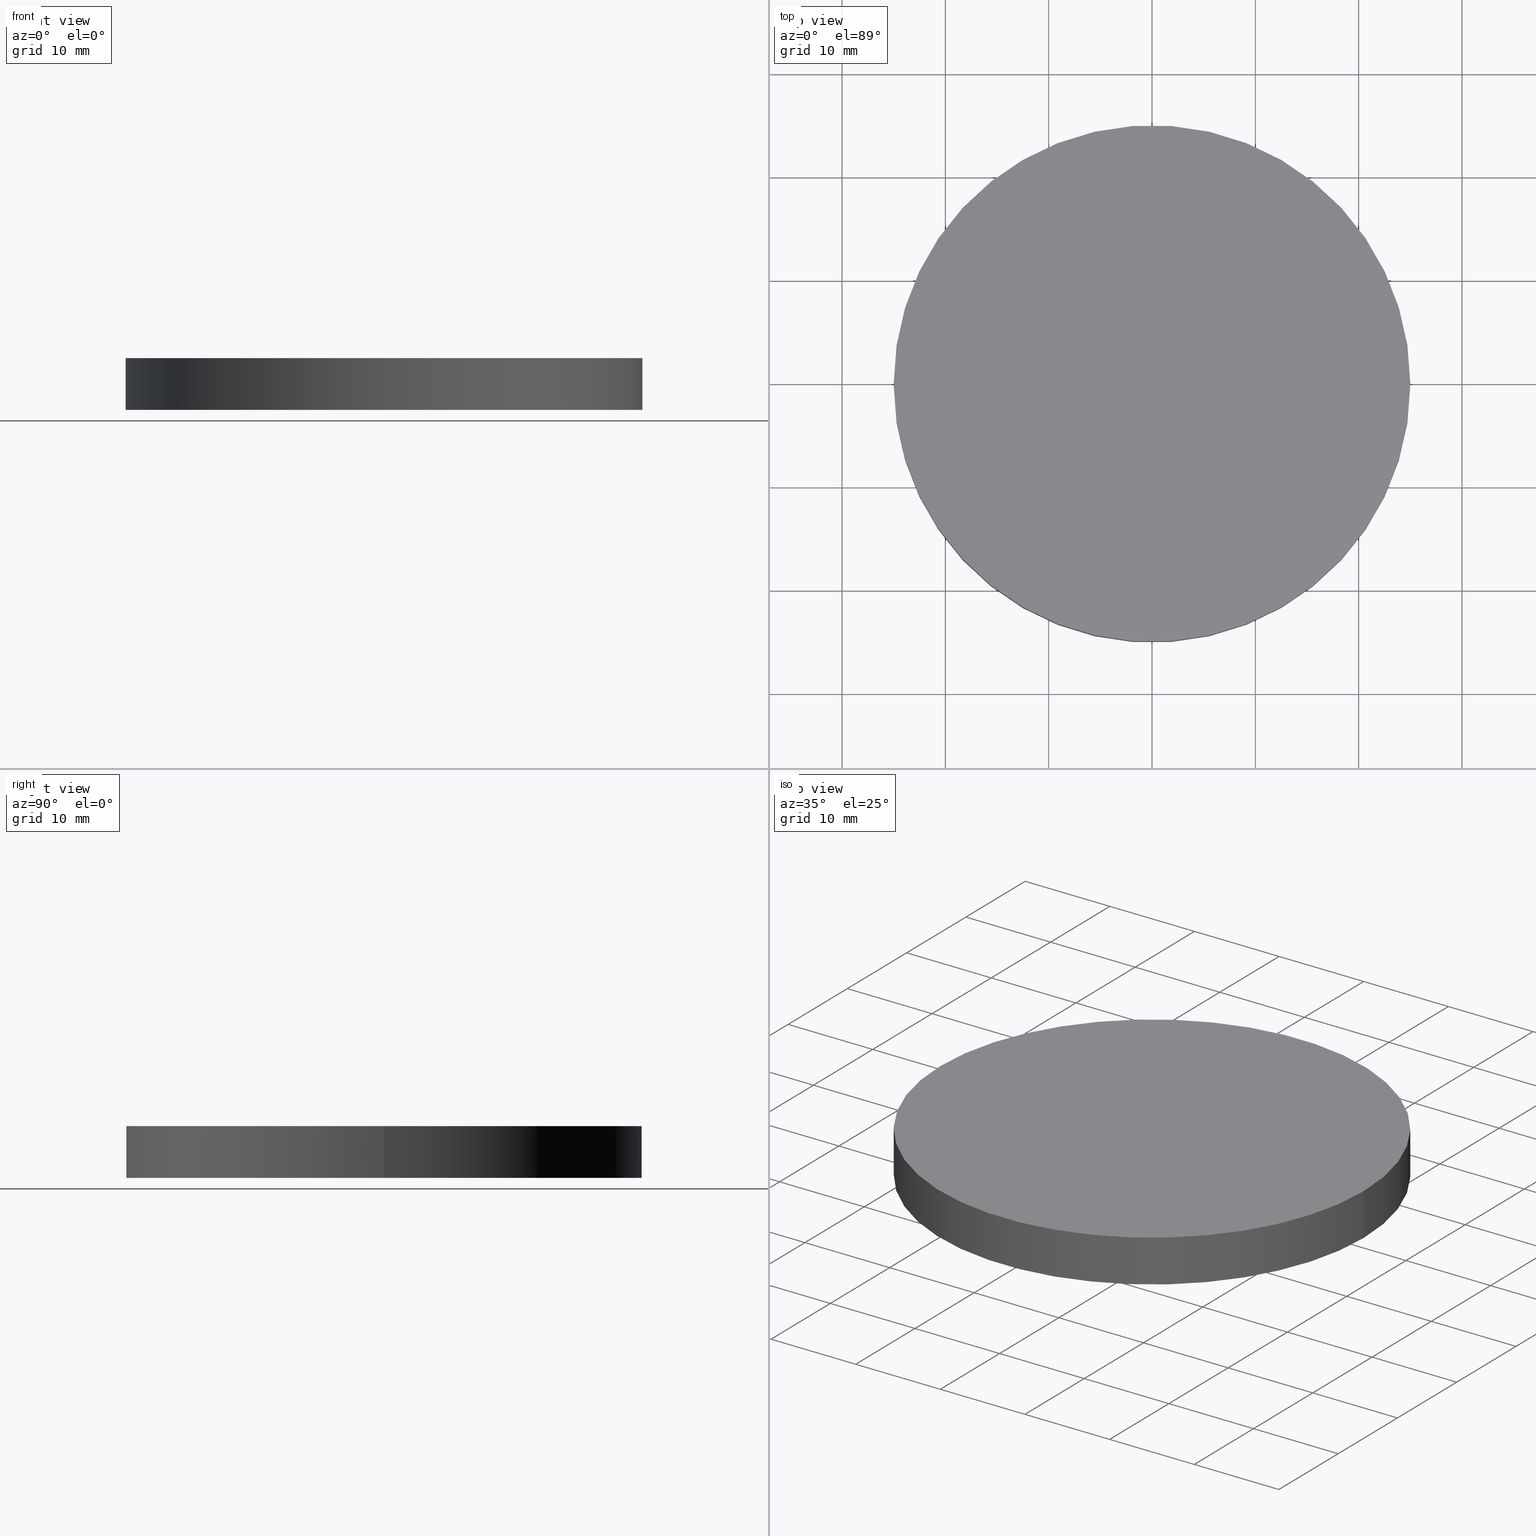
[diagram: canonical four-view strip — front | top / right | iso, engineering-drawing reading convention]
A machine part, canonical four-view strip (front | top / right | iso — engineering-drawing reading convention). The complete STEP part file that produces these views, byte-faithful:
ISO-10303-21;
HEADER;
FILE_DESCRIPTION (( 'STEP AP214' ),
    '1' );
FILE_NAME ('190160.STEP',
    '2019-07-18T06:48:18',
    ( 'user' ),
    ( '΢���й�' ),
    'SwSTEP 2.0',
    'SolidWorks 2016',
    '' );
FILE_SCHEMA (( 'AUTOMOTIVE_DESIGN' ));
ENDSEC;

DATA;
#1 = AXIS2_PLACEMENT_3D ( 'NONE', #88, #60, #124 ) ;
#2 =( LENGTH_UNIT ( ) NAMED_UNIT ( * ) SI_UNIT ( .MILLI., .METRE. ) );
#3 = PRODUCT_CONTEXT ( 'NONE', #138, 'mechanical' ) ;
#4 = ORIENTED_EDGE ( 'NONE', *, *, #23, .F. ) ;
#5 = FILL_AREA_STYLE_COLOUR ( '', #95 ) ;
#6 = PRODUCT_DEFINITION_SHAPE ( 'NONE', 'NONE',  #96 ) ;
#7 = STYLED_ITEM ( 'NONE', ( #105 ), #28 ) ;
#8 = AXIS2_PLACEMENT_3D ( 'NONE', #74, #131, #59 ) ;
#9 = VERTEX_POINT ( 'NONE', #79 ) ;
#10 = VERTEX_POINT ( 'NONE', #65 ) ;
#11 = APPLICATION_PROTOCOL_DEFINITION ( 'draft international standard', 'automotive_design', 1998, #138 ) ;
#12 = CARTESIAN_POINT ( 'NONE',  ( 0.0000000000000000000, 0.0000000000000000000, 5.000000000000000000 ) ) ;
#13 = PRODUCT_DEFINITION_CONTEXT ( 'detailed design', #27, 'design' ) ;
#14 =( GEOMETRIC_REPRESENTATION_CONTEXT ( 3 ) GLOBAL_UNCERTAINTY_ASSIGNED_CONTEXT ( ( #135 ) ) GLOBAL_UNIT_ASSIGNED_CONTEXT ( ( #33, #104, #21 ) ) REPRESENTATION_CONTEXT ( 'NONE', 'WORKASPACE' ) );
#15 = ORIENTED_EDGE ( 'NONE', *, *, #92, .F. ) ;
#16 = VERTEX_POINT ( 'NONE', #89 ) ;
#17 = UNCERTAINTY_MEASURE_WITH_UNIT (LENGTH_MEASURE( 1.000000000000000100E-005 ), #2, 'distance_accuracy_value', 'NONE');
#18 = FACE_OUTER_BOUND ( 'NONE', #128, .T. ) ;
#19 = MANIFOLD_SOLID_BREP ( '͹̨-����1', #99 ) ;
#20 = AXIS2_PLACEMENT_3D ( 'NONE', #123, #87, #45 ) ;
#21 =( NAMED_UNIT ( * ) SI_UNIT ( $, .STERADIAN. ) SOLID_ANGLE_UNIT ( ) );
#22 = CARTESIAN_POINT ( 'NONE',  ( 25.00000000000000000, 3.061616997868383000E-015, 5.000000000000000000 ) ) ;
#23 = EDGE_CURVE ( 'NONE', #16, #9, #36, .T. ) ;
#24 = CYLINDRICAL_SURFACE ( 'NONE', #20, 25.00000000000000000 ) ;
#25 = DIRECTION ( 'NONE',  ( -0.0000000000000000000, -0.0000000000000000000, -1.000000000000000000 ) ) ;
#26 =( NAMED_UNIT ( * ) SI_UNIT ( $, .STERADIAN. ) SOLID_ANGLE_UNIT ( ) );
#27 = APPLICATION_CONTEXT ( 'automotive_design' ) ;
#28 = ADVANCED_BREP_SHAPE_REPRESENTATION ( '190160', ( #19, #90 ), #14 ) ;
#29 = FACE_OUTER_BOUND ( 'NONE', #69, .T. ) ;
#30 = AXIS2_PLACEMENT_3D ( 'NONE', #12, #57, #97 ) ;
#31 = STYLED_ITEM ( 'NONE', ( #115 ), #19 ) ;
#32 = MECHANICAL_DESIGN_GEOMETRIC_PRESENTATION_REPRESENTATION (  '', ( #31 ), #120 ) ;
#33 =( LENGTH_UNIT ( ) NAMED_UNIT ( * ) SI_UNIT ( .MILLI., .METRE. ) );
#34 = SURFACE_STYLE_FILL_AREA ( #130 ) ;
#35 = DIRECTION ( 'NONE',  ( 0.0000000000000000000, 0.0000000000000000000, 1.000000000000000000 ) ) ;
#36 = CIRCLE ( 'NONE', #80, 25.00000000000000000 ) ;
#37 = CARTESIAN_POINT ( 'NONE',  ( -25.00000000000000000, 0.0000000000000000000, 0.0000000000000000000 ) ) ;
#38 = DIRECTION ( 'NONE',  ( 1.000000000000000000, 0.0000000000000000000, -0.0000000000000000000 ) ) ;
#39 =( LENGTH_UNIT ( ) NAMED_UNIT ( * ) SI_UNIT ( .MILLI., .METRE. ) );
#40 = UNCERTAINTY_MEASURE_WITH_UNIT (LENGTH_MEASURE( 1.000000000000000100E-005 ), #39, 'distance_accuracy_value', 'NONE');
#41 = PRESENTATION_LAYER_ASSIGNMENT (  '', '', ( #31 ) ) ;
#42 = ORIENTED_EDGE ( 'NONE', *, *, #94, .F. ) ;
#43 = ORIENTED_EDGE ( 'NONE', *, *, #47, .F. ) ;
#44 = PRESENTATION_LAYER_ASSIGNMENT (  '', '', ( #7 ) ) ;
#45 = DIRECTION ( 'NONE',  ( -1.000000000000000000, 0.0000000000000000000, 0.0000000000000000000 ) ) ;
#46 = ADVANCED_FACE ( 'NONE', ( #68 ), #76, .F. ) ;
#47 = EDGE_CURVE ( 'NONE', #9, #16, #137, .T. ) ;
#48 = SHAPE_DEFINITION_REPRESENTATION ( #6, #28 ) ;
#49 = DIRECTION ( 'NONE',  ( 0.0000000000000000000, 0.0000000000000000000, 1.000000000000000000 ) ) ;
#50 = CARTESIAN_POINT ( 'NONE',  ( 0.0000000000000000000, 0.0000000000000000000, 0.0000000000000000000 ) ) ;
#51 = ORIENTED_EDGE ( 'NONE', *, *, #47, .T. ) ;
#52 = DIRECTION ( 'NONE',  ( 1.000000000000000000, 0.0000000000000000000, 0.0000000000000000000 ) ) ;
#53 = MECHANICAL_DESIGN_GEOMETRIC_PRESENTATION_REPRESENTATION (  '', ( #7 ), #64 ) ;
#54 = CYLINDRICAL_SURFACE ( 'NONE', #30, 25.00000000000000000 ) ;
#55 = CIRCLE ( 'NONE', #67, 25.00000000000000000 ) ;
#56 = SURFACE_SIDE_STYLE ('',( #34 ) ) ;
#57 = DIRECTION ( 'NONE',  ( -0.0000000000000000000, -0.0000000000000000000, -1.000000000000000000 ) ) ;
#58 = ADVANCED_FACE ( 'NONE', ( #29 ), #109, .T. ) ;
#59 = DIRECTION ( 'NONE',  ( 1.000000000000000000, 0.0000000000000000000, 0.0000000000000000000 ) ) ;
#60 = DIRECTION ( 'NONE',  ( 0.0000000000000000000, 0.0000000000000000000, 1.000000000000000000 ) ) ;
#61 = CIRCLE ( 'NONE', #8, 25.00000000000000000 ) ;
#62 = DIRECTION ( 'NONE',  ( 0.0000000000000000000, 0.0000000000000000000, 1.000000000000000000 ) ) ;
#63 =( NAMED_UNIT ( * ) SI_UNIT ( $, .STERADIAN. ) SOLID_ANGLE_UNIT ( ) );
#64 =( GEOMETRIC_REPRESENTATION_CONTEXT ( 3 ) GLOBAL_UNCERTAINTY_ASSIGNED_CONTEXT ( ( #17 ) ) GLOBAL_UNIT_ASSIGNED_CONTEXT ( ( #2, #100, #63 ) ) REPRESENTATION_CONTEXT ( 'NONE', 'WORKASPACE' ) );
#65 = CARTESIAN_POINT ( 'NONE',  ( 25.00000000000000000, 3.061616997868383000E-015, 0.0000000000000000000 ) ) ;
#66 = ORIENTED_EDGE ( 'NONE', *, *, #92, .T. ) ;
#67 = AXIS2_PLACEMENT_3D ( 'NONE', #116, #35, #106 ) ;
#68 = FACE_OUTER_BOUND ( 'NONE', #81, .T. ) ;
#69 = EDGE_LOOP ( 'NONE', ( #51, #82 ) ) ;
#70 = ORIENTED_EDGE ( 'NONE', *, *, #84, .T. ) ;
#71 = FILL_AREA_STYLE_COLOUR ( '', #85 ) ;
#72 = PRODUCT ( '190160', '190160', '', ( #3 ) ) ;
#73 = CARTESIAN_POINT ( 'NONE',  ( 0.0000000000000000000, 0.0000000000000000000, 0.0000000000000000000 ) ) ;
#74 = CARTESIAN_POINT ( 'NONE',  ( 0.0000000000000000000, 0.0000000000000000000, 0.0000000000000000000 ) ) ;
#75 = DIRECTION ( 'NONE',  ( 0.0000000000000000000, 0.0000000000000000000, 1.000000000000000000 ) ) ;
#76 = PLANE ( 'NONE',  #126 ) ;
#77 = DIRECTION ( 'NONE',  ( 0.0000000000000000000, 0.0000000000000000000, 1.000000000000000000 ) ) ;
#78 = VERTEX_POINT ( 'NONE', #37 ) ;
#79 = CARTESIAN_POINT ( 'NONE',  ( -25.00000000000000000, 0.0000000000000000000, 5.000000000000000000 ) ) ;
#80 = AXIS2_PLACEMENT_3D ( 'NONE', #133, #62, #125 ) ;
#81 = EDGE_LOOP ( 'NONE', ( #42, #15 ) ) ;
#82 = ORIENTED_EDGE ( 'NONE', *, *, #23, .T. ) ;
#83 = ORIENTED_EDGE ( 'NONE', *, *, #114, .T. ) ;
#84 = EDGE_CURVE ( 'NONE', #9, #78, #117, .T. ) ;
#85 = COLOUR_RGB ( '',1.000000000000000000, 1.000000000000000000, 1.000000000000000000 ) ;
#86 = AXIS2_PLACEMENT_3D ( 'NONE', #140, #75, #132 ) ;
#87 = DIRECTION ( 'NONE',  ( -0.0000000000000000000, -0.0000000000000000000, -1.000000000000000000 ) ) ;
#88 = CARTESIAN_POINT ( 'NONE',  ( 0.0000000000000000000, 0.0000000000000000000, 5.000000000000000000 ) ) ;
#89 = CARTESIAN_POINT ( 'NONE',  ( 25.00000000000000000, 3.061616997868383000E-015, 5.000000000000000000 ) ) ;
#90 = AXIS2_PLACEMENT_3D ( 'NONE', #73, #77, #52 ) ;
#91 = SURFACE_SIDE_STYLE ('',( #93 ) ) ;
#92 = EDGE_CURVE ( 'NONE', #10, #78, #61, .T. ) ;
#93 = SURFACE_STYLE_FILL_AREA ( #118 ) ;
#94 = EDGE_CURVE ( 'NONE', #78, #10, #55, .T. ) ;
#95 = COLOUR_RGB ( '',1.000000000000000000, 1.000000000000000000, 1.000000000000000000 ) ;
#96 = PRODUCT_DEFINITION ( 'δ֪', '', #103, #13 ) ;
#97 = DIRECTION ( 'NONE',  ( -1.000000000000000000, 0.0000000000000000000, 0.0000000000000000000 ) ) ;
#98 = DIRECTION ( 'NONE',  ( -0.0000000000000000000, -0.0000000000000000000, -1.000000000000000000 ) ) ;
#99 = CLOSED_SHELL ( 'NONE', ( #107, #139, #58, #46 ) ) ;
#100 =( NAMED_UNIT ( * ) PLANE_ANGLE_UNIT ( ) SI_UNIT ( $, .RADIAN. ) );
#101 = ORIENTED_EDGE ( 'NONE', *, *, #84, .F. ) ;
#102 = FACE_OUTER_BOUND ( 'NONE', #112, .T. ) ;
#103 = PRODUCT_DEFINITION_FORMATION_WITH_SPECIFIED_SOURCE ( '�κ�', '', #72, .NOT_KNOWN. ) ;
#104 =( NAMED_UNIT ( * ) PLANE_ANGLE_UNIT ( ) SI_UNIT ( $, .RADIAN. ) );
#105 = PRESENTATION_STYLE_ASSIGNMENT (( #122 ) ) ;
#106 = DIRECTION ( 'NONE',  ( 1.000000000000000000, 0.0000000000000000000, 0.0000000000000000000 ) ) ;
#107 = ADVANCED_FACE ( 'NONE', ( #102 ), #24, .T. ) ;
#108 = CARTESIAN_POINT ( 'NONE',  ( -25.00000000000000000, 0.0000000000000000000, 5.000000000000000000 ) ) ;
#109 = PLANE ( 'NONE',  #1 ) ;
#110 =( NAMED_UNIT ( * ) PLANE_ANGLE_UNIT ( ) SI_UNIT ( $, .RADIAN. ) );
#111 = ORIENTED_EDGE ( 'NONE', *, *, #114, .F. ) ;
#112 = EDGE_LOOP ( 'NONE', ( #4, #83, #66, #101 ) ) ;
#113 = PRODUCT_RELATED_PRODUCT_CATEGORY ( 'part', '', ( #72 ) ) ;
#114 = EDGE_CURVE ( 'NONE', #16, #10, #121, .T. ) ;
#115 = PRESENTATION_STYLE_ASSIGNMENT (( #119 ) ) ;
#116 = CARTESIAN_POINT ( 'NONE',  ( 0.0000000000000000000, 0.0000000000000000000, 0.0000000000000000000 ) ) ;
#117 = LINE ( 'NONE', #108, #134 ) ;
#118 = FILL_AREA_STYLE ('',( #5 ) ) ;
#119 = SURFACE_STYLE_USAGE ( .BOTH. , #91 ) ;
#120 =( GEOMETRIC_REPRESENTATION_CONTEXT ( 3 ) GLOBAL_UNCERTAINTY_ASSIGNED_CONTEXT ( ( #40 ) ) GLOBAL_UNIT_ASSIGNED_CONTEXT ( ( #39, #110, #26 ) ) REPRESENTATION_CONTEXT ( 'NONE', 'WORKASPACE' ) );
#121 = LINE ( 'NONE', #22, #136 ) ;
#122 = SURFACE_STYLE_USAGE ( .BOTH. , #56 ) ;
#123 = CARTESIAN_POINT ( 'NONE',  ( 0.0000000000000000000, 0.0000000000000000000, 5.000000000000000000 ) ) ;
#124 = DIRECTION ( 'NONE',  ( 1.000000000000000000, 0.0000000000000000000, -0.0000000000000000000 ) ) ;
#125 = DIRECTION ( 'NONE',  ( 1.000000000000000000, 0.0000000000000000000, 0.0000000000000000000 ) ) ;
#126 = AXIS2_PLACEMENT_3D ( 'NONE', #50, #49, #38 ) ;
#127 = APPLICATION_PROTOCOL_DEFINITION ( 'draft international standard', 'automotive_design', 1998, #27 ) ;
#128 = EDGE_LOOP ( 'NONE', ( #111, #43, #70, #129 ) ) ;
#129 = ORIENTED_EDGE ( 'NONE', *, *, #94, .T. ) ;
#130 = FILL_AREA_STYLE ('',( #71 ) ) ;
#131 = DIRECTION ( 'NONE',  ( 0.0000000000000000000, 0.0000000000000000000, 1.000000000000000000 ) ) ;
#132 = DIRECTION ( 'NONE',  ( 1.000000000000000000, 0.0000000000000000000, 0.0000000000000000000 ) ) ;
#133 = CARTESIAN_POINT ( 'NONE',  ( 0.0000000000000000000, 0.0000000000000000000, 5.000000000000000000 ) ) ;
#134 = VECTOR ( 'NONE', #25, 1000.000000000000000 ) ;
#135 = UNCERTAINTY_MEASURE_WITH_UNIT (LENGTH_MEASURE( 1.000000000000000100E-005 ), #33, 'distance_accuracy_value', 'NONE');
#136 = VECTOR ( 'NONE', #98, 1000.000000000000000 ) ;
#137 = CIRCLE ( 'NONE', #86, 25.00000000000000000 ) ;
#138 = APPLICATION_CONTEXT ( 'automotive_design' ) ;
#139 = ADVANCED_FACE ( 'NONE', ( #18 ), #54, .T. ) ;
#140 = CARTESIAN_POINT ( 'NONE',  ( 0.0000000000000000000, 0.0000000000000000000, 5.000000000000000000 ) ) ;
ENDSEC;
END-ISO-10303-21;
